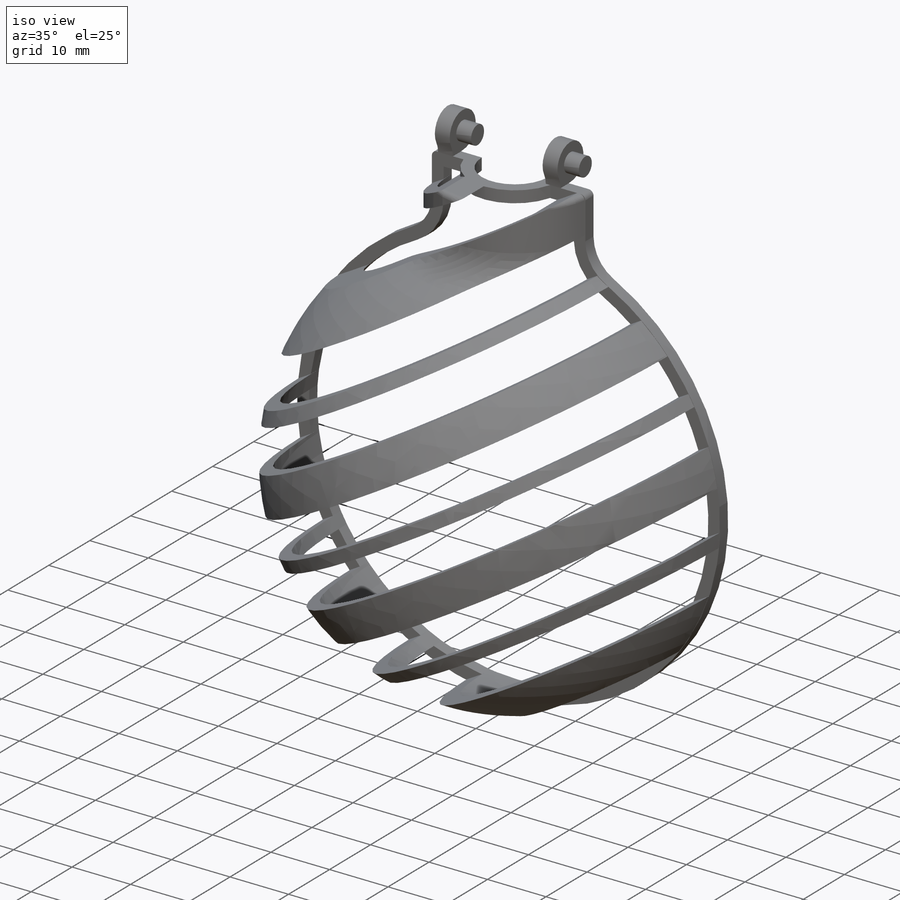
[diagram: iso view]
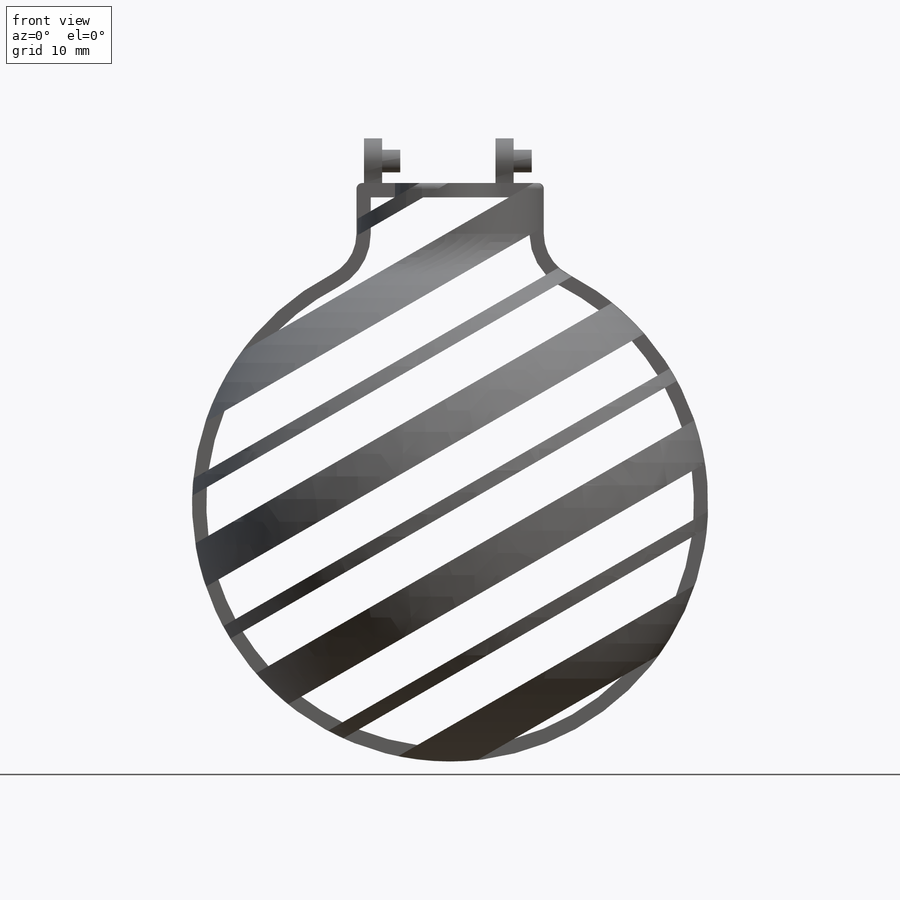
[diagram: front view]
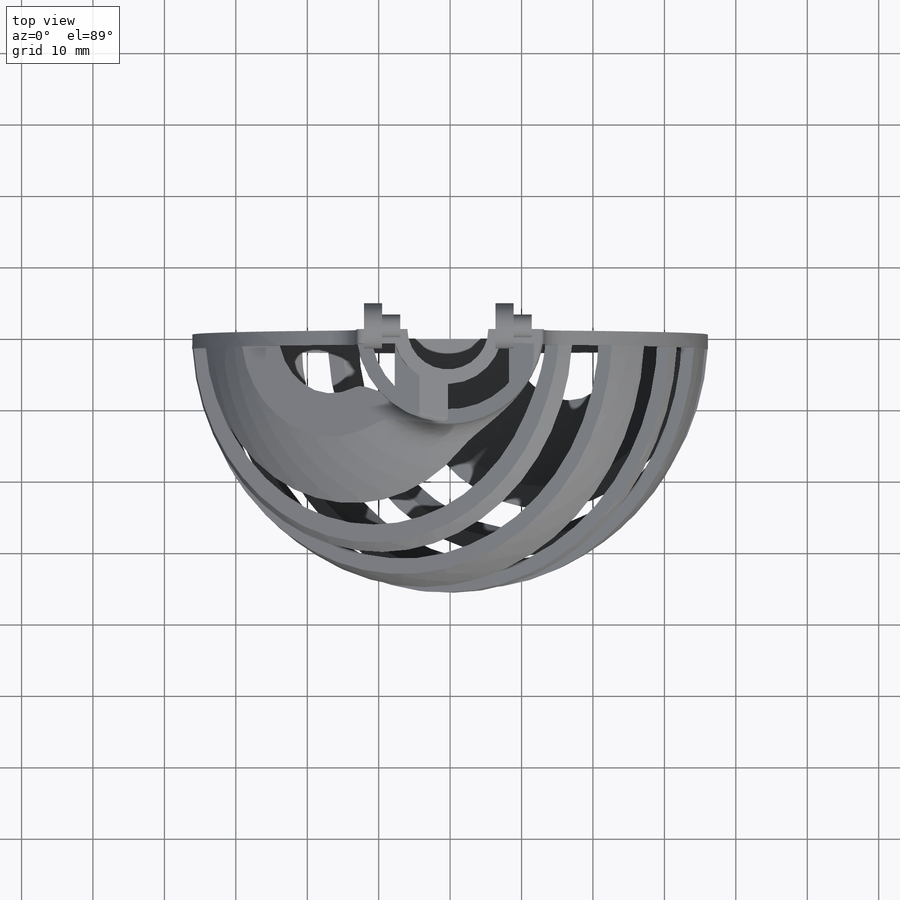
[diagram: top view]
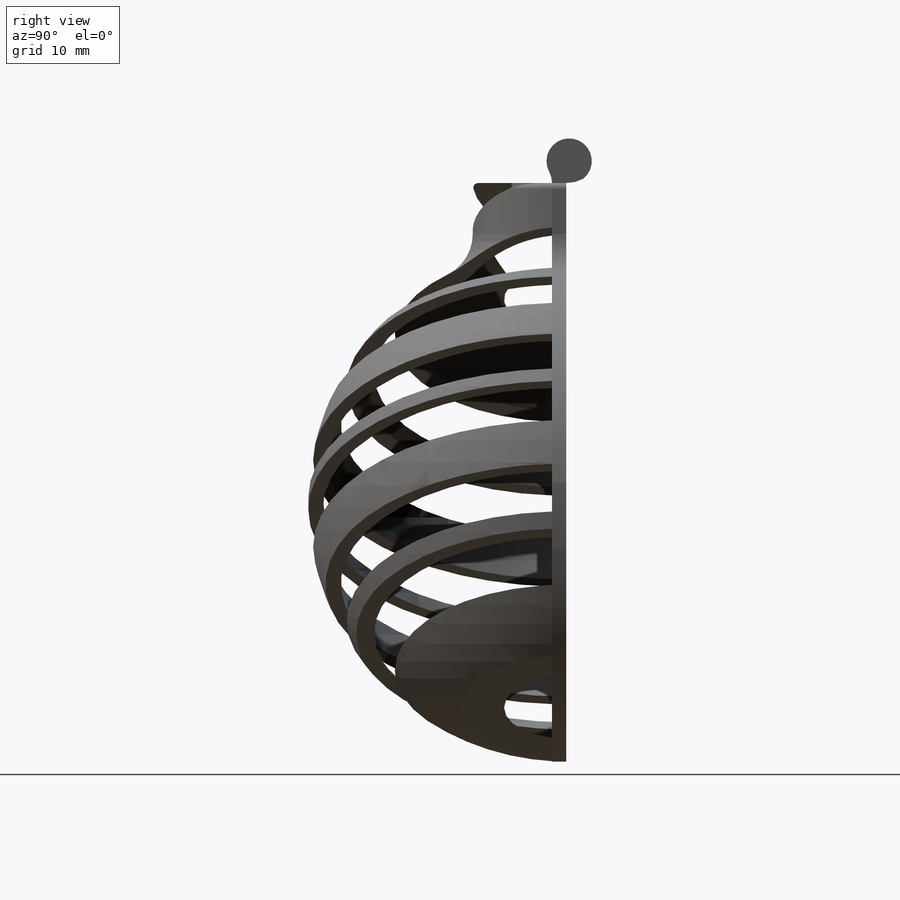
[diagram: right view]
SOLIDWORKS PART (.sldprt)
format: sldprt  version: not decoded by parser v0  size: 662,528 bytes
history: native  units: mm
features: sketch x10, extrude x6, cut_extrude x2, material x1, revolve x1, shell x1, plane x1 (+13 scaffold rows collapsed)
feature tree (35):
  scaffold x13  (default folders/planes/origin — collapsed)
  material  "Material <not specified>"
  sketch  "Sketch1"  dims[c1.D1=68.2625mm c1.D2=~79.739315mm c1.D3=6.35mm c1.D4=~0.79375mm c2.D2=2.0mm c2.D5=30.575mm c2.D6=~80.99375mm c3.D5=13.1125mm]
  revolve  "Revolve1"  Angle=180deg
  shell  "Shell1"  Thickness=2mm
  sketch  "Sketch2"  dims[c1.D1=73.85mm c2.D1=30.0deg c2.D2=2.0mm c2.D3=6.0mm c2.D4=8.0mm c2.D5=127.0mm]
  plane  "Plane1"  Offset=70.79529mm
  sketch  "Sketch3"  dims[c1.D1=73.85mm c2.D1=30.0deg c2.D2=2.0mm c2.D3=6.0mm c2.D4=6.0mm c2.D5=127.0mm c3.D1=73.85mm c4.D1=30.0deg c4.D5=127.0mm]
  cut_extrude  "Cut-Extrude1"  [1 undecoded]
  sketch  "Sketch4"  dims[c1.D1=69.85mm c1.D2=~79.739315mm c1.D3=6.35mm c1.D4=1.5875mm c2.D2=2.0mm c2.D5=30.575mm c2.D6=83.375mm c3.D5=15.2875mm c3.D1=2.0mm]
  extrude  "Boss-Extrude1"  Depth=2mm
  sketch  "Sketch5"  dims[c1.D1=6.35mm c1.D2=3.81mm c1.D4=5.08mm c2.D2=~0.396875mm c2.D3=~3.074181mm]
  extrude  "Boss-Extrude2"  Depth=2.54mm
  extrude  "Boss-Extrude3"  [1 undecoded]
  sketch  "Sketch5<2>"  dims[D1=2.54mm D19=9.525mm]
  sketch  "Sketch6"  dims[D1=2.54mm]
  cut_extrude  "Cut-Extrude2"  [1 undecoded]
  sketch  "Sketch7"  dims[c1.D1=~13.453352mm c1.D2=6.6675mm c2.D1=1.0mm c2.D2=1.0mm]
  extrude  "Boss-Extrude4"  Depth=2mm
  sketch  "Sketch8"  dims[D1=3.175mm]
  extrude  "Boss-Extrude5"  Depth=2.54mm
  extrude  "Boss-Extrude6"  [1 undecoded]
  sketch  "Sketch8<2>"  dims[D1=2.54mm]
decode coverage: 16 of 20 modeling features carry decoded parameters
note: ~ marks probable driven/reference dimensions
note: 4 parameter values undecoded
summary: no parameter record found for 4 features
note: suppression state not decoded; provenance and decode notes live in map.json
